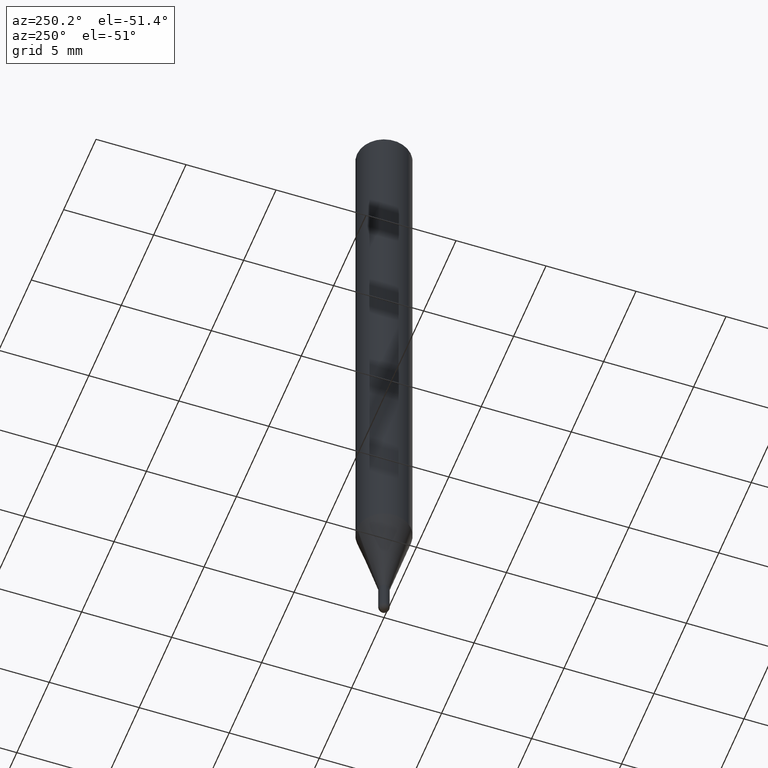
[diagram: clean part render]
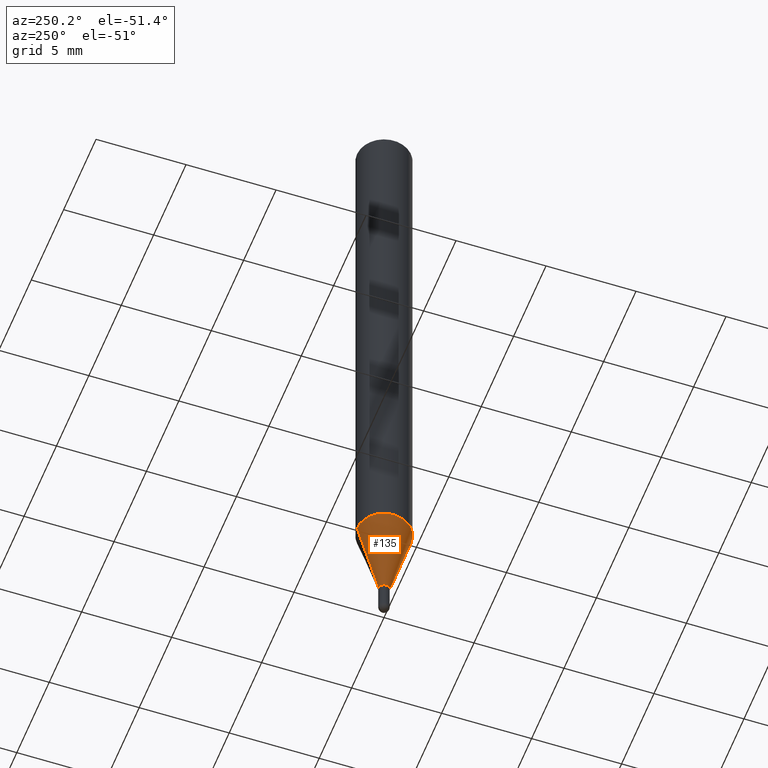
[diagram: same view with one face highlighted and labeled with its STEP entity id]
A machine part, auxiliary view. The second image highlights one B-rep face of the part: STEP entity #135.
In plain terms, the highlighted conical surface has half-angle 15 deg.
Its self-contained STEP definition (entity closure, byte-faithful):
#7 = CONICAL_SURFACE ( 'NONE', #109, 0.01179999999999965452, 0.2617993877991572349 ) ;
#22 = DIRECTION ( 'NONE',  ( -2.445436776855933528E-29, 3.491527206665560554E-15, 1.000000000000000000 ) ) ;
#33 = EDGE_CURVE ( 'NONE', #373, #153, #74, .T. ) ;
#37 = DIRECTION ( 'NONE',  ( 1.839019923739647647E-15, 0.2588190451025316197, 0.9659258262890653146 ) ) ;
#74 = CIRCLE ( 'NONE', #362, 0.05904999999999999832 ) ;
#84 = DIRECTION ( 'NONE',  ( -2.445436776855933528E-29, 3.491527206665560554E-15, 1.000000000000000000 ) ) ;
#89 = EDGE_CURVE ( 'NONE', #500, #394, #325, .T. ) ;
#98 = EDGE_CURVE ( 'NONE', #500, #373, #397, .T. ) ;
#103 = DIRECTION ( 'NONE',  ( -6.982962677686266711E-15, -1.000000000000000000, 0.000000000000000000 ) ) ;
#109 = AXIS2_PLACEMENT_3D ( 'NONE', #457, #22, #103 ) ;
#113 = ORIENTED_EDGE ( 'NONE', *, *, #89, .T. ) ;
#127 = DIRECTION ( 'NONE',  ( -1.807323732225377077E-15, -0.2588190451025249028, 0.9659258262890670910 ) ) ;
#135 = ADVANCED_FACE ( 'NONE', ( #413 ), #7, .T. ) ;
#138 = EDGE_LOOP ( 'NONE', ( #290, #113, #375, #157 ) ) ;
#153 = VERTEX_POINT ( 'NONE', #266 ) ;
#157 = ORIENTED_EDGE ( 'NONE', *, *, #33, .F. ) ;
#166 = DIRECTION ( 'NONE',  ( -6.982962677686265922E-15, -1.000000000000000000, 4.626330217890369336E-15 ) ) ;
#189 = CARTESIAN_POINT ( 'NONE',  ( -8.239895959666068997E-17, -0.01180000000000462970, -1.425100000000000033 ) ) ;
#241 = CARTESIAN_POINT ( 'NONE',  ( 4.195754854663694697E-16, 0.05904999999999562682, -1.248760599342375155 ) ) ;
#246 = DIRECTION ( 'NONE',  ( -6.982962677686266711E-15, -1.000000000000000000, 0.000000000000000000 ) ) ;
#252 = CARTESIAN_POINT ( 'NONE',  ( 2.517097641430470322E-16, 0.01179999999999467933, -1.425100000000000033 ) ) ;
#266 = CARTESIAN_POINT ( 'NONE',  ( -4.123439461173436122E-16, -0.05905000000000436289, -1.248760599342374489 ) ) ;
#275 = DIRECTION ( 'NONE',  ( -2.445436776855933528E-29, 3.491527206665560554E-15, 1.000000000000000000 ) ) ;
#290 = ORIENTED_EDGE ( 'NONE', *, *, #98, .F. ) ;
#325 = CIRCLE ( 'NONE', #398, 0.01179999999999965452 ) ;
#328 = CARTESIAN_POINT ( 'NONE',  ( 8.384404281972420026E-17, 0.01179999999999467933, -1.425100000000000033 ) ) ;
#350 = CARTESIAN_POINT ( 'NONE',  ( 3.053765095120501030E-29, -4.360081607215893074E-15, -1.248760599342374711 ) ) ;
#362 = AXIS2_PLACEMENT_3D ( 'NONE', #350, #275, #166 ) ;
#373 = VERTEX_POINT ( 'NONE', #241 ) ;
#375 = ORIENTED_EDGE ( 'NONE', *, *, #426, .T. ) ;
#394 = VERTEX_POINT ( 'NONE', #189 ) ;
#395 = LINE ( 'NONE', #474, #452 ) ;
#397 = LINE ( 'NONE', #328, #420 ) ;
#398 = AXIS2_PLACEMENT_3D ( 'NONE', #442, #84, #246 ) ;
#413 = FACE_OUTER_BOUND ( 'NONE', #138, .T. ) ;
#420 = VECTOR ( 'NONE', #37, 39.37007874015748854 ) ;
#426 = EDGE_CURVE ( 'NONE', #394, #153, #395, .T. ) ;
#442 = CARTESIAN_POINT ( 'NONE',  ( 3.484991950697390441E-29, -4.975775422219090776E-15, -1.425100000000000033 ) ) ;
#452 = VECTOR ( 'NONE', #127, 39.37007874015748143 ) ;
#457 = CARTESIAN_POINT ( 'NONE',  ( 3.484991950697390441E-29, -4.975775422219090776E-15, -1.425100000000000033 ) ) ;
#474 = CARTESIAN_POINT ( 'NONE',  ( -8.239895959666068997E-17, -0.01180000000000462970, -1.425100000000000033 ) ) ;
#500 = VERTEX_POINT ( 'NONE', #252 ) ;